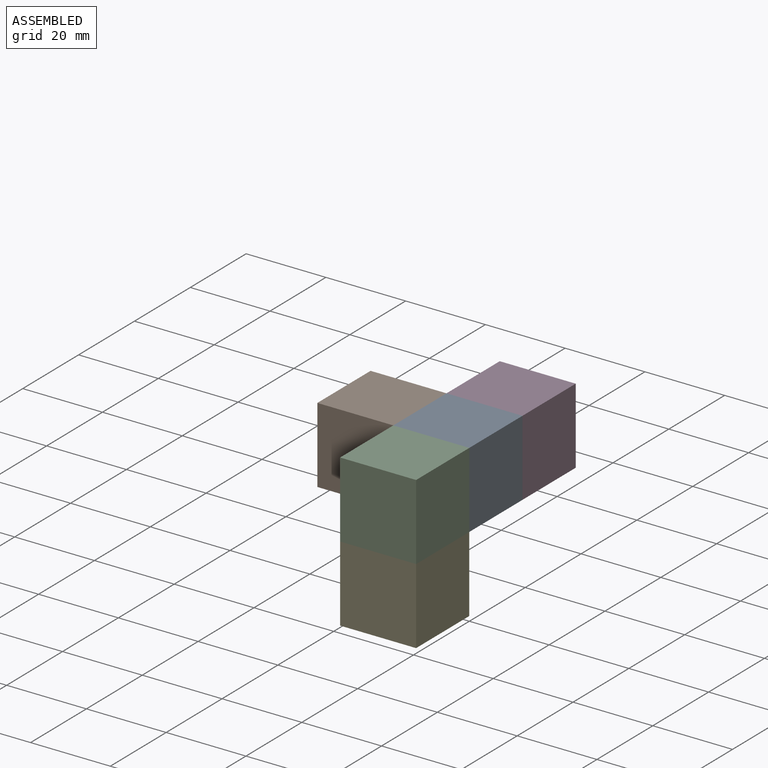
[diagram: assembled view]
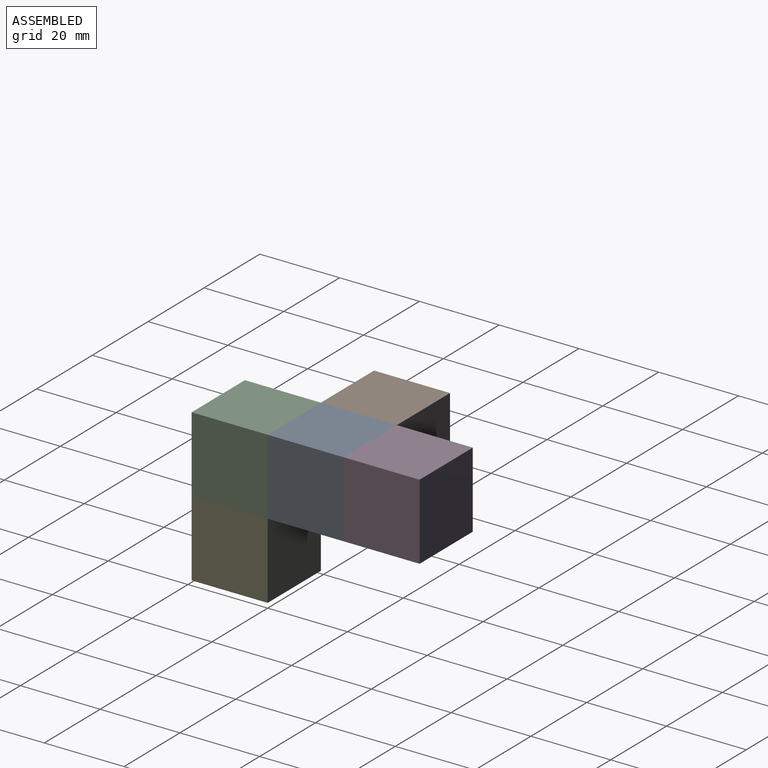
[diagram: assembled view, second angle]
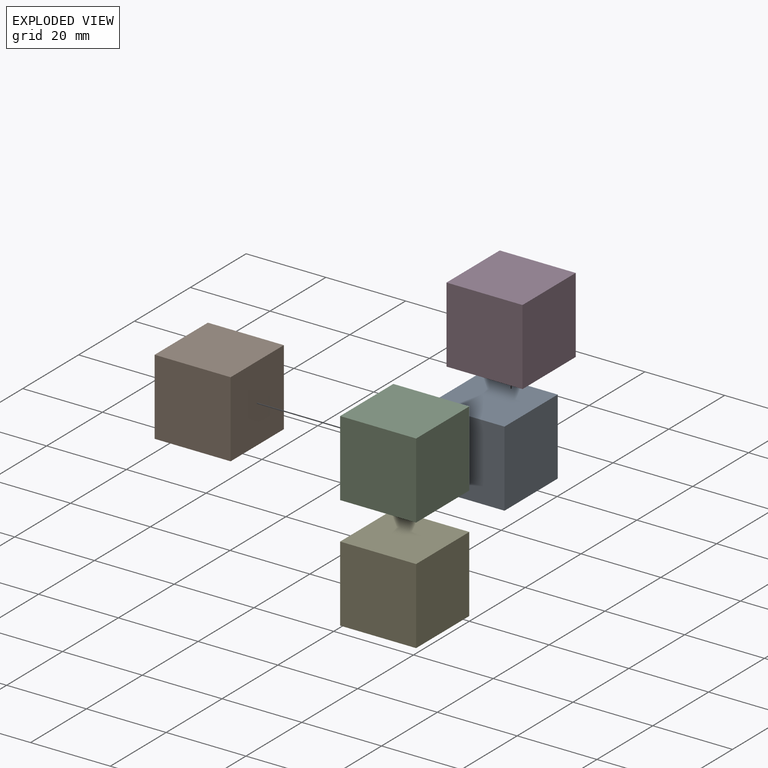
[diagram: exploded view]
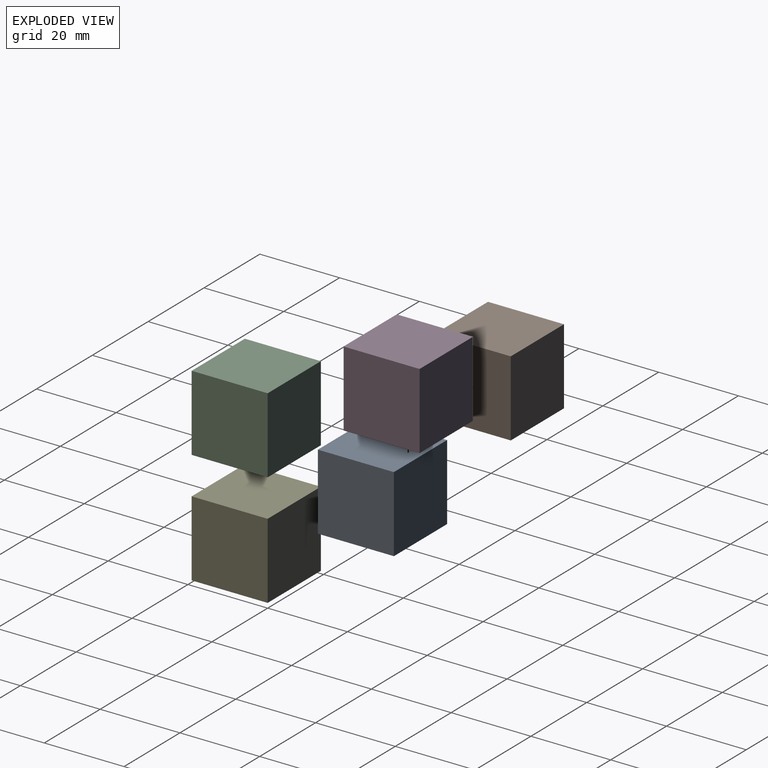
[diagram: exploded view, second angle]
ASSEMBLY  parts=5 mates=4
PART A: 6 faces, bbox 19.1x19.1x19.1 mm
  f0: plane 19.05x19.05mm, normal (0,0,1), area 362.9mm2, adj f1,f3,f4,f5
  f1: plane 19.05x19.05mm, normal (-1,0,0), area 362.9mm2, adj f0,f2,f4,f5
  f2: plane 19.05x19.05mm, normal (0,0,-1), area 362.9mm2, adj f1,f3,f4,f5
  f3: plane 19.05x19.05mm, normal (1,0,0), area 362.9mm2, adj f0,f2,f4,f5
  f4: plane 19.05x19.05mm, normal (0,-1,0), area 362.9mm2, adj f0,f1,f2,f3
  f5: plane 19.05x19.05mm, normal (0,1,0), area 362.9mm2, adj f0,f1,f2,f3
PART B: same geometry as A
PART C: same geometry as A
PART D: same geometry as A
PART E: same geometry as A
PLACE A t=(0,19.05,19.05)mm
PLACE B t=(-19.05,19.05,19.05)mm
PLACE C rot(axis=(1,0,0),180deg) t=(0,-19.05,38.1)mm
PLACE D t=(0,38.1,19.05)mm
PLACE E rot(axis=(-0.58,0.58,0.58),120deg) t=(-19.05,-19.05,0)mm
MATE fastened D.f0 <-> A.f0  axis (0,0,1) through (0,19.05,38.1)mm
MATE fastened A.f0 <-> C.f2  axis (0,0,1) through (-19.05,0,38.1)mm
MATE fastened B.f0 <-> A.f0  axis (0,0,1) through (-19.05,0,38.1)mm
MATE fastened C.f3 <-> E.f4  axis (1,0,0) through (0,0,19.05)mm
